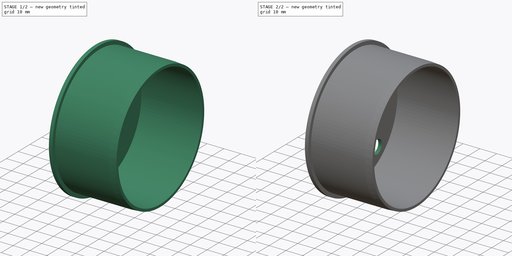
[diagram: build sequence overview — one tinted view per stage of 2, left to right]
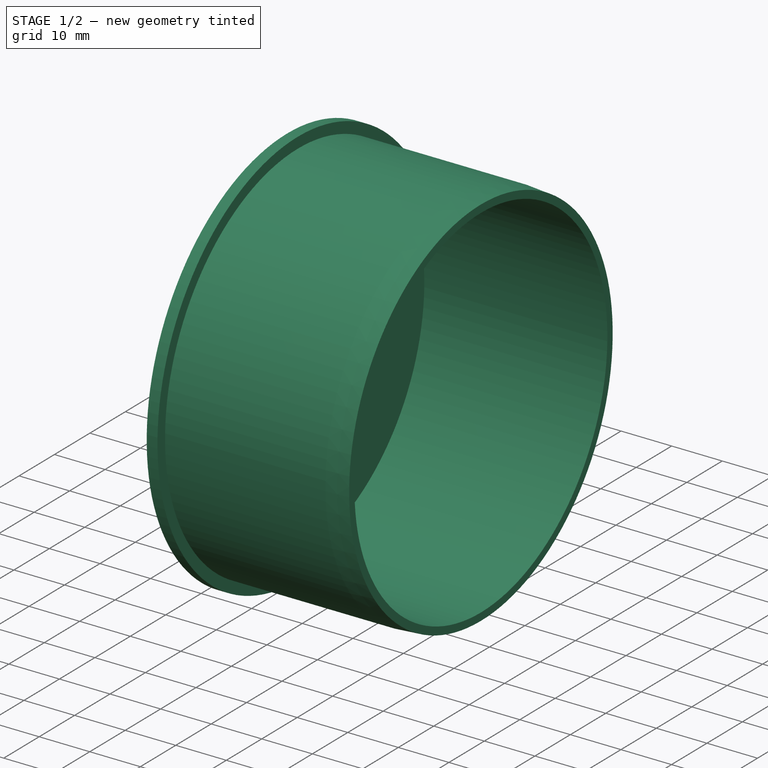
[diagram: stage 1 of 2 — iso view after this stage's code; geometry added in this stage tinted green]
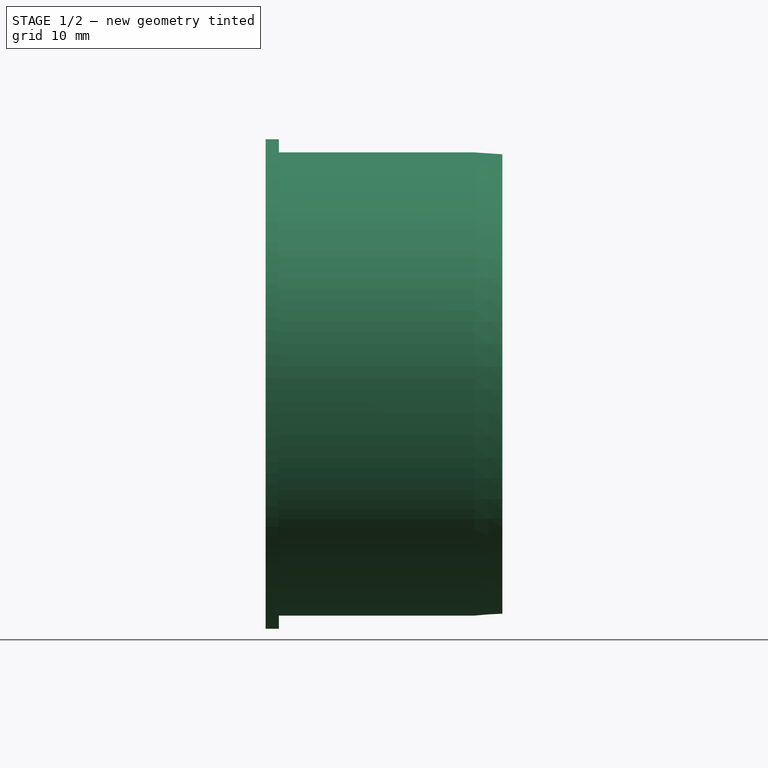
[diagram: stage 1 of 2 — front view after this stage's code; geometry added in this stage tinted green]
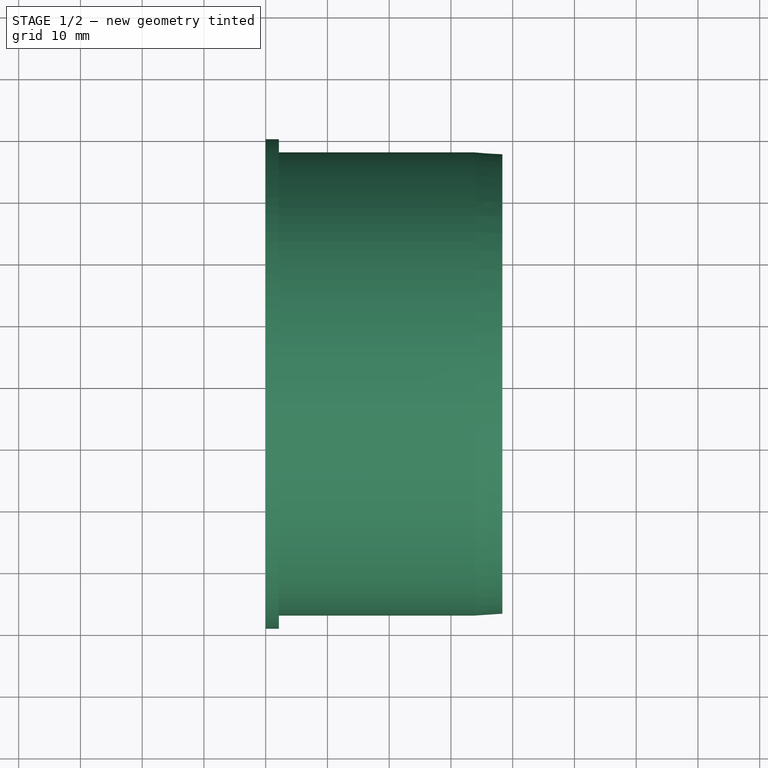
[diagram: stage 1 of 2 — top view after this stage's code; geometry added in this stage tinted green]
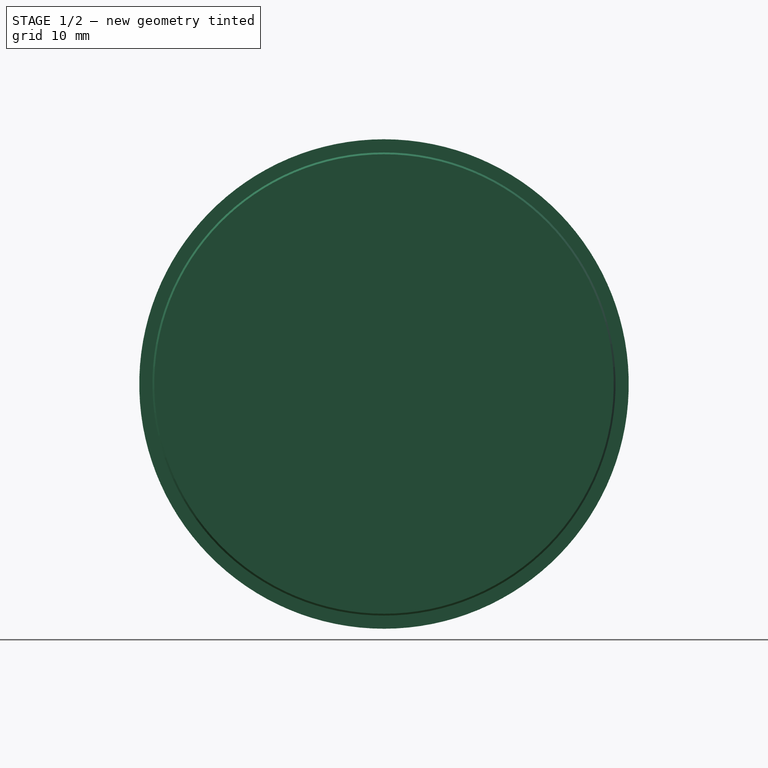
[diagram: stage 1 of 2 — right view after this stage's code; geometry added in this stage tinted green]
FCSTD DOCUMENT  (FreeCAD 1.0R39319 (Git))
Label: HtMuffenstopfenDn75
License: All rights reserved
objects: Sketcher::SketchObject×2, PartDesign::Revolution×1, PartDesign::Pocket×1, PartDesign::Body×1
note: 11 computed .brp shape members not serialized (recipe doc carries the construction recipe); baked Part::Feature solids carry a one-line shape summary decoded from their .brp

FEATURE [Sketcher::SketchObject] Sketch
  ArcFitTolerance = 1e-06
  AttachmentSupport = -> [XZ_Plane]
  FullyConstrained = true
  MakeInternals = false
  MapMode = 5
  Placement = pos=(0,0,0) rot=(1,0,0;1.5708rad)
  sketch-geometry (9):
    g0: LineSegment StartX=2.27143e-11 StartY=-2.84e-14 StartZ=0 EndX=2.27143e-11 EndY=39.63 EndZ=0
    g1: LineSegment StartX=2.27143e-11 StartY=39.63 StartZ=0 EndX=2.13 EndY=39.63 EndZ=0
    g2: LineSegment StartX=2.13 StartY=39.63 StartZ=0 EndX=2.13 EndY=37.5 EndZ=0
    g3: LineSegment StartX=2.13 StartY=37.5 StartZ=0 EndX=33.82 EndY=37.5 EndZ=0
    g4: LineSegment StartX=33.82 StartY=37.5 StartZ=0 EndX=38.32 EndY=37.2 EndZ=0
    g5: LineSegment StartX=38.32 StartY=37.2 StartZ=0 EndX=38.32 EndY=35.7 EndZ=0
    g6: LineSegment StartX=38.32 StartY=35.7 StartZ=0 EndX=2.13 EndY=35.7 EndZ=0
    g7: LineSegment StartX=2.13 StartY=35.7 StartZ=0 EndX=2.13 EndY=-2.84e-14 EndZ=0
    g8: LineSegment StartX=2.13 StartY=-2.84e-14 StartZ=0 EndX=2.27143e-11 EndY=-2.84e-14 EndZ=0
  constraints (26):
    c: Vertical(g0)
    c: Coincident(g0,g1)
    c: Horizontal(g1)
    c: Coincident(g1,g2)
    c: Vertical(g2)
    c: Coincident(g2,g3)
    c: Horizontal(g3)
    c: Coincident(g3,g4)
    c: Coincident(g4,g5)
    c: Coincident(g5,g6)
    c: Horizontal(g6)
    c: Coincident(g6,g7)
    c: Vertical(g7)
    c: Coincident(g7,g8)
    c: Coincident(g8,g0)
    c: DistanceY(g0,g0) = 39.63
    c: DistanceY(g7,g2) = 37.5
    c: Horizontal(g8)
    c: DistanceX(g1,g1) = 2.13
    c: Vertical(g2,g6)
    c: Vertical(g5)
    c: DistanceY(g6,g2) = 1.8
    c: DistanceX(g6,g5) = 36.19
    c: DistanceX(g3,g4) = 4.5
    c: Coincident(g0,g-1)
    c: DistanceY(g5,g5) = 1.5
FEATURE [PartDesign::Revolution] Revolution
  Angle = 360
  Angle2 = 60
  Axis = (1,0,0)
  Base = (0,0,0)
  Placement = pos=(0,0,0) rot=(1,0,0;1.5708rad)
  Profile = -> Sketch
  ReferenceAxis = -> X_Axis
  Suppressed = false
  Type = 0
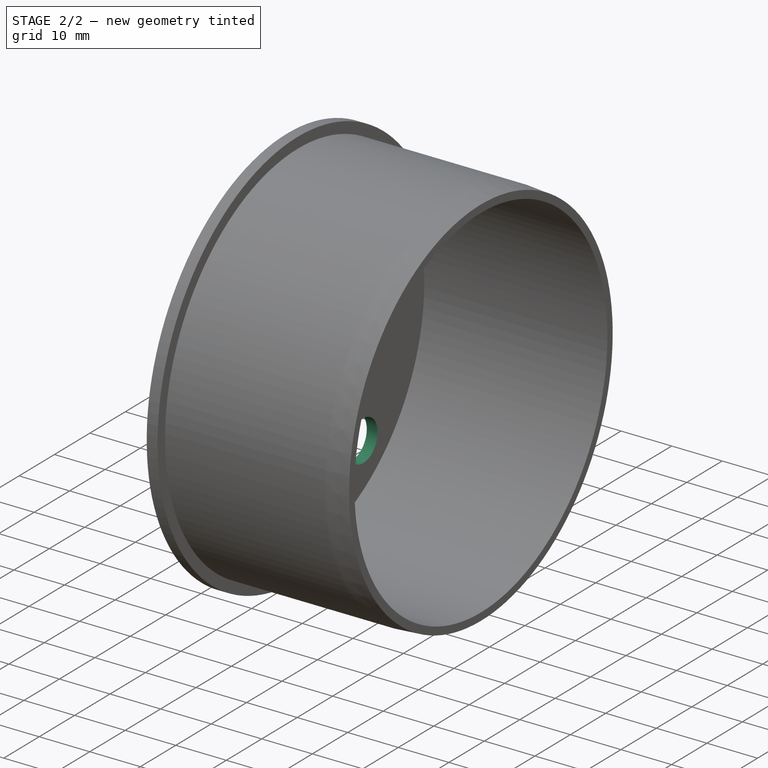
[diagram: stage 2 of 2 — iso view after this stage's code; geometry added in this stage tinted green]
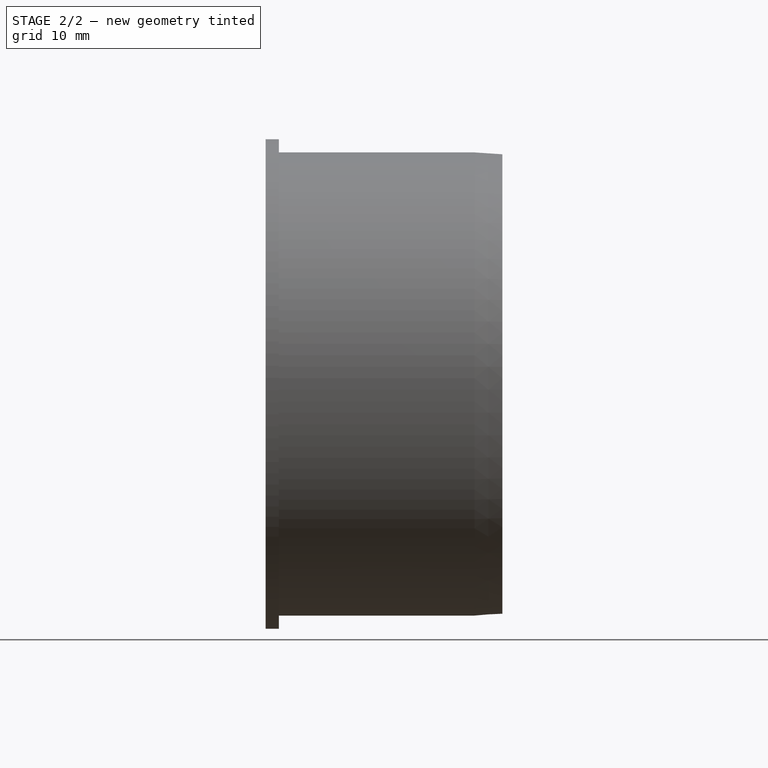
[diagram: stage 2 of 2 — front view after this stage's code; geometry added in this stage tinted green]
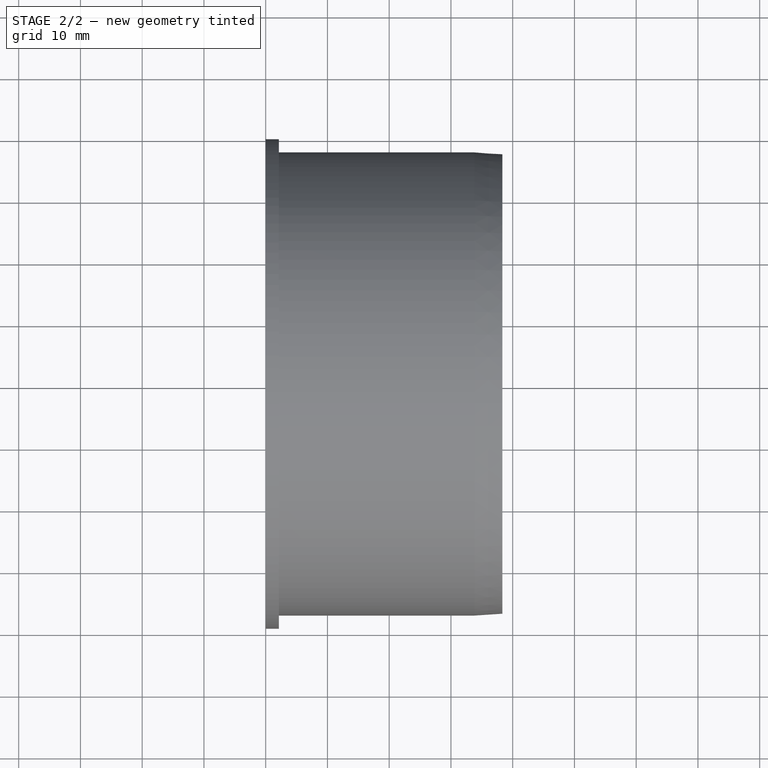
[diagram: stage 2 of 2 — top view after this stage's code; geometry added in this stage tinted green]
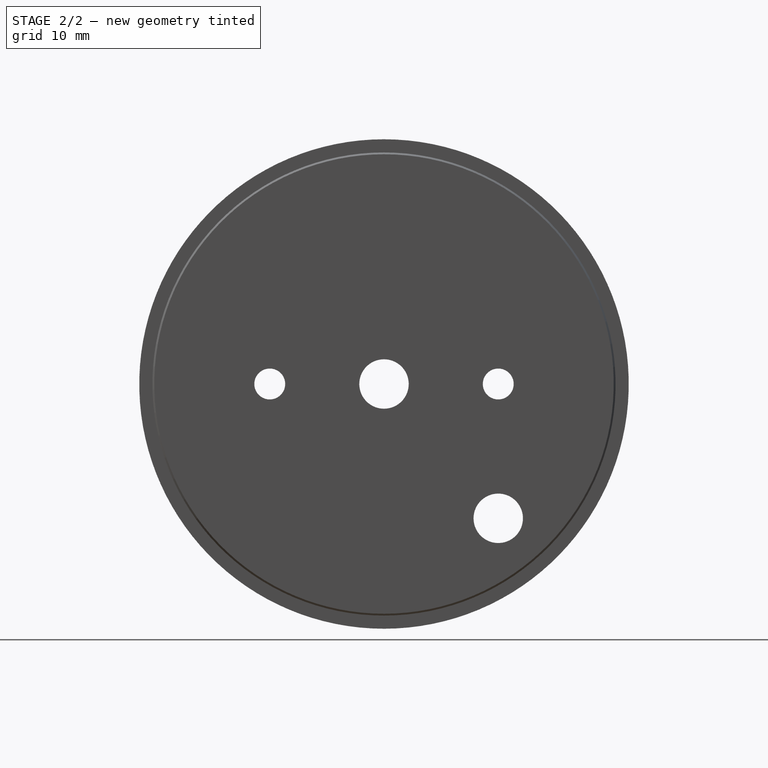
[diagram: stage 2 of 2 — right view after this stage's code; geometry added in this stage tinted green]
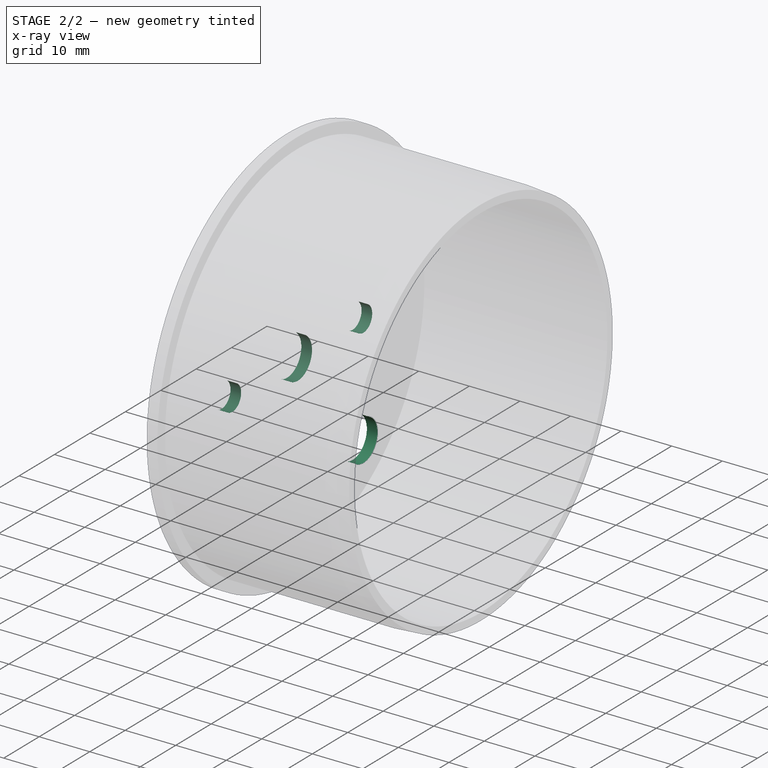
[diagram: stage 2 of 2 — x-ray composite at the iso view; earlier geometry ghosted, this stage's added geometry solid]
FEATURE [Sketcher::SketchObject] Sketch001
  ArcFitTolerance = 1e-06
  AttachmentSupport = -> [Revolution]
  FullyConstrained = true
  MakeInternals = false
  MapMode = 5
  Placement = pos=(2.27143e-11,0,0) rot=(0.707107,0,-0.707107;3.14159rad)
  sketch-geometry (4):
    g0: Circle CenterX=-4.01e-14 CenterY=0 CenterZ=0 NormalX=0 NormalY=0 NormalZ=1 AngleXU=0 Radius=4
    g1: Circle CenterX=2e-14 CenterY=18.5 CenterZ=0 NormalX=0 NormalY=0 NormalZ=1 AngleXU=0 Radius=2.5
    g2: Circle CenterX=-1.761e-13 CenterY=-18.5 CenterZ=0 NormalX=0 NormalY=0 NormalZ=1 AngleXU=0 Radius=2.5
    g3: Circle CenterX=21.75 CenterY=-18.5 CenterZ=0 NormalX=0 NormalY=0 NormalZ=1 AngleXU=0 Radius=4
  constraints (10):
    c: Coincident(g0,g-1)
    c: Diameter(g0) = 8
    c: PointOnObject(g1,g-2)
    c: Equal(g2,g1)
    c: Diameter(g1) = 5
    c: Symmetric(g1,g2,g0)
    c: DistanceY(g2,g1) = 37
    c: Diameter(g3) = 8
    c: DistanceX(g2,g3) = 21.75
    c: Horizontal(g2,g3)
FEATURE [PartDesign::Pocket] Pocket  label="Bohrungen"
  BaseFeature = -> Revolution
  Direction = (1,0,2e-16)
  Length = 5
  Length2 = 5
  Placement = pos=(0,0,0) rot=(1,0,0;1.5708rad)
  Profile = -> Sketch001
  ReferenceAxis = -> Sketch001 [N_Axis]
  Suppressed = false
  Type = 1
FEATURE [PartDesign::Body] Body
  AllowCompound = false
  Group = -> [Sketch,Revolution,Sketch001,Pocket]
  Origin = -> Origin
  Tip = -> Pocket
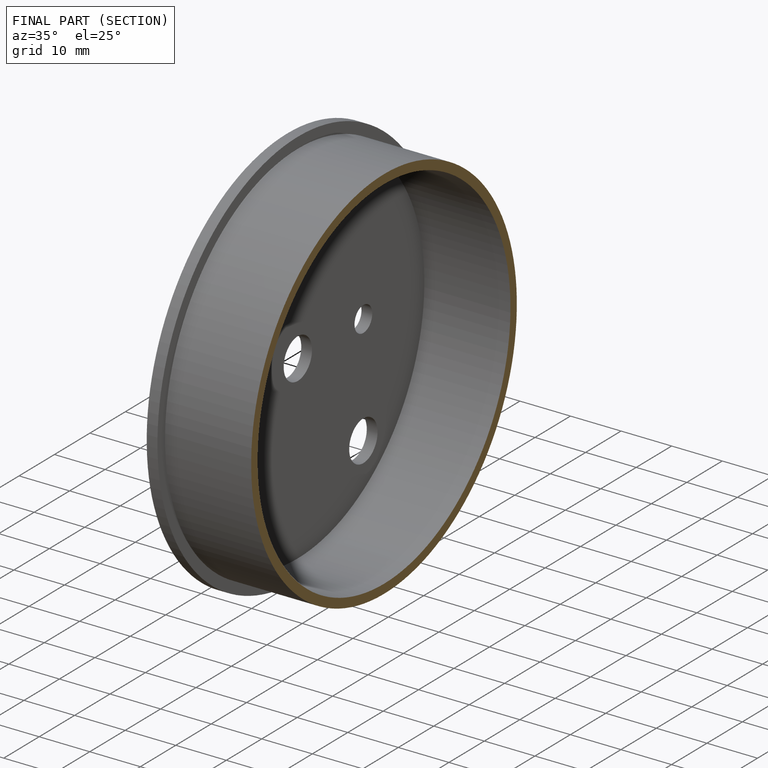
[diagram: finished part — half-section view (interior)]
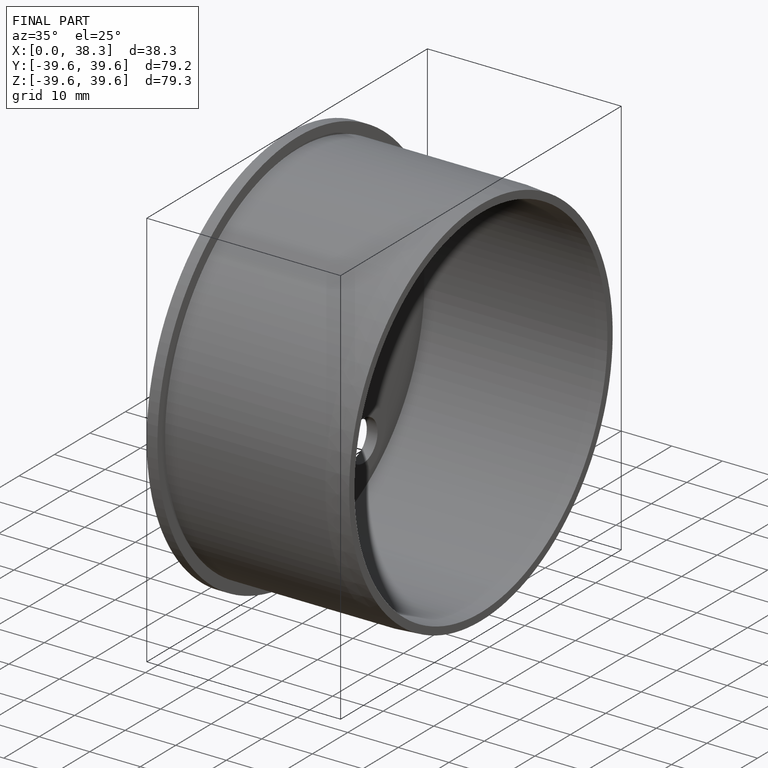
[diagram: finished part — iso view with bounding-box wireframe]
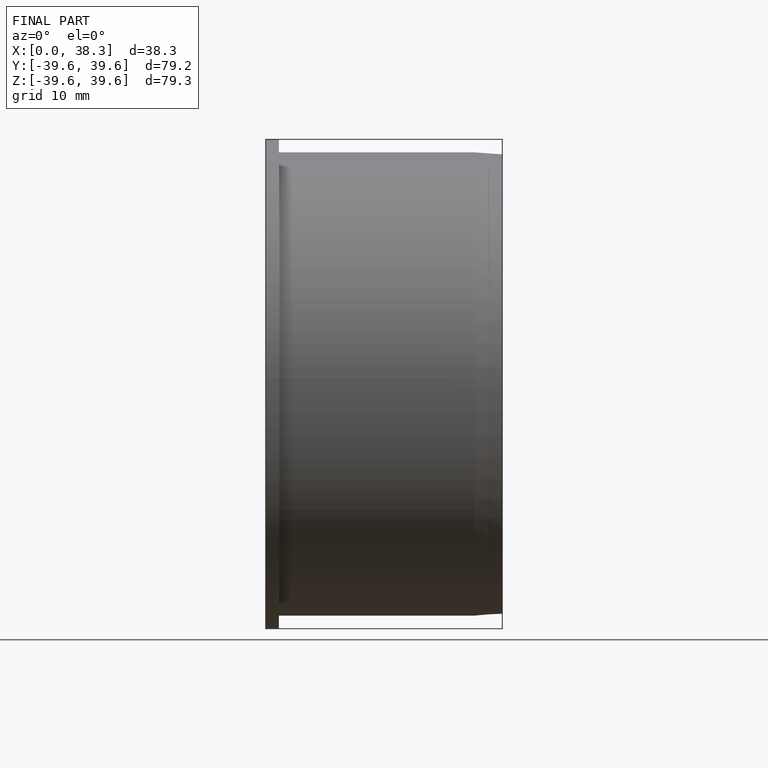
[diagram: finished part — front view with bounding-box wireframe]
